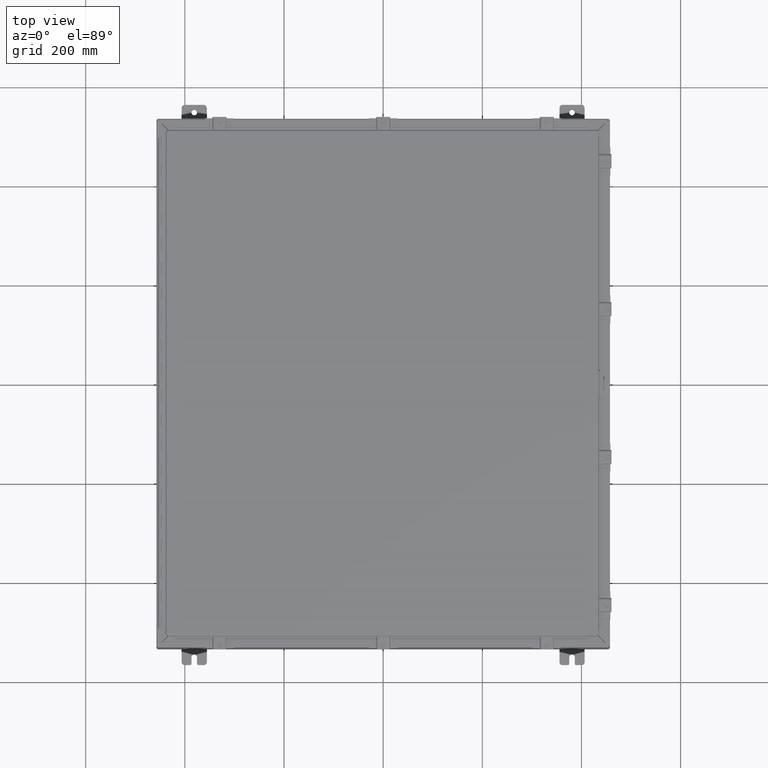
[diagram: clean part render]
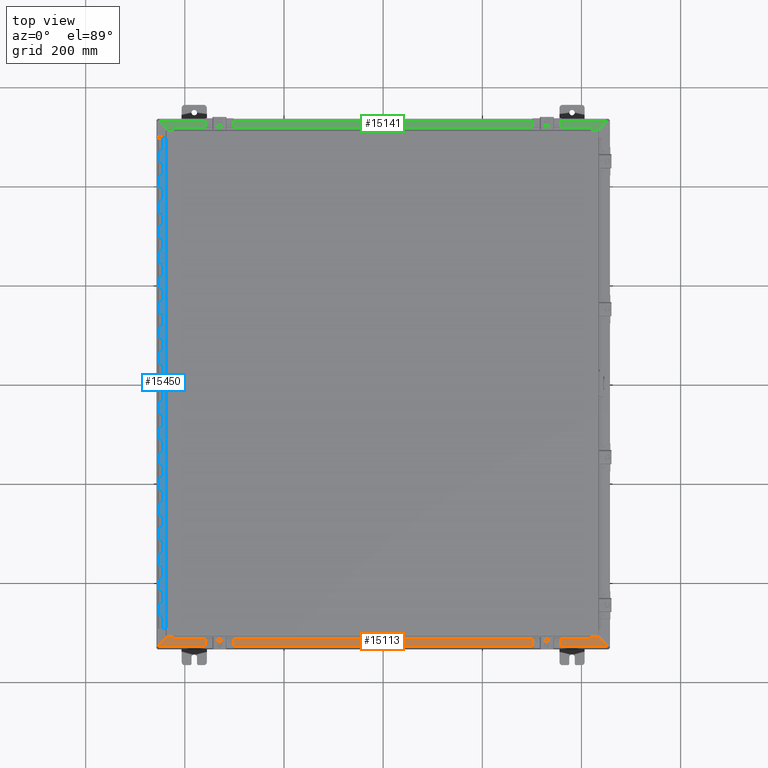
[diagram: same view with three faces highlighted in distinct colors, each labeled with its STEP entity id]
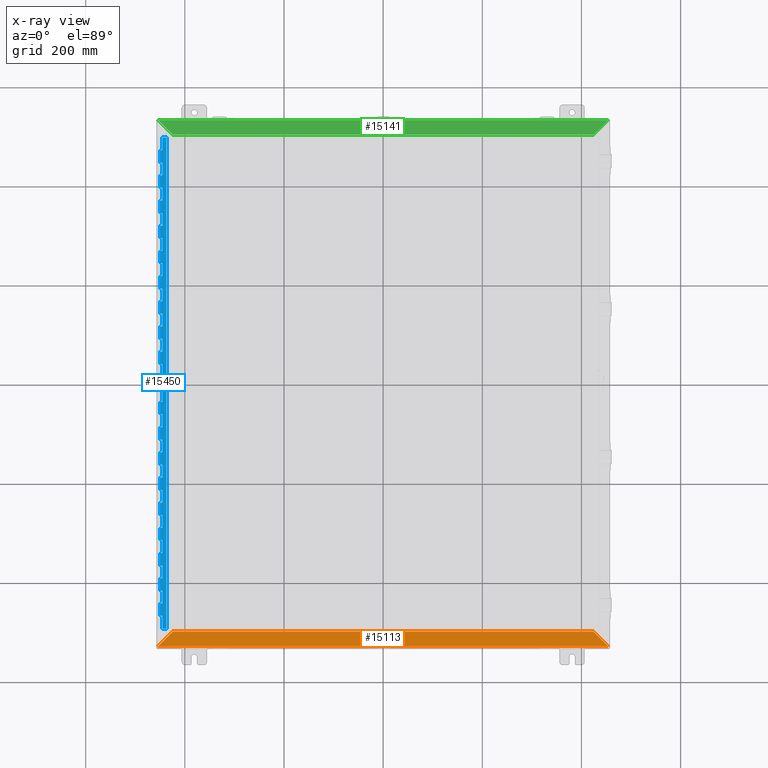
[diagram: x-ray of the same camera — body ghosted, the three highlighted faces saturated]
A machine part, top view with three faces highlighted in distinct colors.
The next image is the same camera in x-ray (body ghosted, the three faces saturated) — at least one of them is partly hidden behind the body in this view.
Their STEP definitions:

[orange] entity #15113 — the highlighted planar face has unit normal (-0, 0, -1).
#1395=PLANE('',#16019);
#1896=FACE_OUTER_BOUND('',#2747,.T.);
#2747=EDGE_LOOP('',(#10853,#10854,#10855,#10856));
#3695=LINE('',#22058,#5115);
#3697=LINE('',#22097,#5117);
#3698=LINE('',#22098,#5118);
#3699=LINE('',#22099,#5119);
#5115=VECTOR('',#17610,33.4081740981923);
#5117=VECTOR('',#17614,35.7371740981923);
#5118=VECTOR('',#17615,1.64685169338348);
#5119=VECTOR('',#17616,1.64685169338348);
#7079=VERTEX_POINT('',#22056);
#7080=VERTEX_POINT('',#22057);
#7087=VERTEX_POINT('',#22095);
#7088=VERTEX_POINT('',#22096);
#8553=EDGE_CURVE('',#7079,#7080,#3695,.T.);
#8561=EDGE_CURVE('',#7087,#7088,#3697,.T.);
#8562=EDGE_CURVE('',#7079,#7088,#3698,.T.);
#8563=EDGE_CURVE('',#7087,#7080,#3699,.T.);
#10853=ORIENTED_EDGE('',*,*,#8561,.T.);
#10854=ORIENTED_EDGE('',*,*,#8562,.F.);
#10855=ORIENTED_EDGE('',*,*,#8553,.T.);
#10856=ORIENTED_EDGE('',*,*,#8563,.F.);
#15113=ADVANCED_FACE('',(#1896),#1395,.F.);
#16019=AXIS2_PLACEMENT_3D('',#22094,#17612,#17613);
#17610=DIRECTION('',(-1.,-1.66420147168304E-16,1.62413541512435E-16));
#17612=DIRECTION('center_axis',(-1.62413541512437E-16,9.88144604941036E-15,
-1.));
#17613=DIRECTION('ref_axis',(-3.13227375855649E-16,1.,9.02389274415329E-15));
#17614=DIRECTION('',(1.,1.56520161755601E-16,-1.62413541512435E-16));
#17615=DIRECTION('',(0.707106781186547,-0.707106781186547,-7.52520684941644E-15));
#17616=DIRECTION('',(0.707106781186547,0.707106781186548,7.52677431392419E-15));
#22056=CARTESIAN_POINT('',(16.7040870490961,-19.73025,8.00000000000001));
#22057=CARTESIAN_POINT('',(-16.7040870490961,-19.73025,8.00000000000001));
#22058=CARTESIAN_POINT('',(-8.35204352454806,-19.73025,8.00000000000001));
#22094=CARTESIAN_POINT('Origin',(-1.41512624784124E-15,-20.3173631599451,
8.));
#22095=CARTESIAN_POINT('',(-17.8685870490961,-20.89475,8.));
#22096=CARTESIAN_POINT('',(17.8685870490961,-20.89475,7.99999999999999));
#22097=CARTESIAN_POINT('',(-2.05597108916229E-15,-20.89475,8.));
#22098=CARTESIAN_POINT('',(17.8685870490961,-20.89475,8.));
#22099=CARTESIAN_POINT('',(-17.8685870490961,-20.89475,8.));

[blue] entity #15450 — the highlighted planar face has unit normal (0.0872, 0, 0.9962).
#1591=PLANE('',#16433);
#2233=FACE_OUTER_BOUND('',#3094,.T.);
#3094=EDGE_LOOP('',(#12406,#12407,#12408,#12409,#12410,#12411,#12412,#12413,
#12414,#12415,#12416,#12417,#12418,#12419,#12420,#12421,#12422,#12423,#12424,
#12425,#12426,#12427,#12428,#12429,#12430,#12431,#12432,#12433,#12434,#12435,
#12436,#12437,#12438,#12439,#12440,#12441,#12442,#12443,#12444,#12445,#12446,
#12447,#12448,#12449,#12450,#12451,#12452,#12453,#12454,#12455,#12456,#12457,
#12458,#12459,#12460,#12461,#12462,#12463,#12464,#12465,#12466,#12467,#12468,
#12469,#12470,#12471,#12472,#12473,#12474,#12475,#12476,#12477,#12478,#12479,
#12480,#12481,#12482,#12483,#12484,#12485));
#4082=LINE('',#25482,#5502);
#4088=LINE('',#25495,#5508);
#4089=LINE('',#25501,#5509);
#4094=LINE('',#25513,#5514);
#4098=LINE('',#25524,#5518);
#4099=LINE('',#25530,#5519);
#4104=LINE('',#25542,#5524);
#4108=LINE('',#25553,#5528);
#4109=LINE('',#25559,#5529);
#4114=LINE('',#25571,#5534);
#4118=LINE('',#25582,#5538);
#4119=LINE('',#25588,#5539);
#4124=LINE('',#25600,#5544);
#4128=LINE('',#25611,#5548);
#4129=LINE('',#25617,#5549);
#4134=LINE('',#25629,#5554);
#4138=LINE('',#25640,#5558);
#4139=LINE('',#25646,#5559);
#4144=LINE('',#25658,#5564);
#4148=LINE('',#25669,#5568);
#4149=LINE('',#25675,#5569);
#4154=LINE('',#25687,#5574);
#4158=LINE('',#25698,#5578);
#4159=LINE('',#25704,#5579);
#4164=LINE('',#25716,#5584);
#4168=LINE('',#25727,#5588);
#4169=LINE('',#25733,#5589);
#4174=LINE('',#25745,#5594);
#4178=LINE('',#25756,#5598);
#4179=LINE('',#25762,#5599);
#4184=LINE('',#25774,#5604);
#4188=LINE('',#25785,#5608);
#4189=LINE('',#25791,#5609);
#4194=LINE('',#25803,#5614);
#4198=LINE('',#25814,#5618);
#4199=LINE('',#25820,#5619);
#4204=LINE('',#25832,#5624);
#4208=LINE('',#25843,#5628);
#4209=LINE('',#25849,#5629);
#4214=LINE('',#25861,#5634);
#4218=LINE('',#25872,#5638);
#4219=LINE('',#25878,#5639);
#4224=LINE('',#25890,#5644);
#4228=LINE('',#25901,#5648);
#4229=LINE('',#25907,#5649);
#4234=LINE('',#25919,#5654);
#4238=LINE('',#25930,#5658);
#4239=LINE('',#25936,#5659);
#4244=LINE('',#25948,#5664);
#4248=LINE('',#25959,#5668);
#4249=LINE('',#25965,#5669);
#4254=LINE('',#25977,#5674);
#4258=LINE('',#25988,#5678);
#4259=LINE('',#25994,#5679);
#4264=LINE('',#26006,#5684);
#4268=LINE('',#26017,#5688);
#4269=LINE('',#26019,#5689);
#4270=LINE('',#26020,#5690);
#4271=LINE('',#26021,#5691);
#4272=LINE('',#26022,#5692);
#4273=LINE('',#26023,#5693);
#4274=LINE('',#26024,#5694);
#4275=LINE('',#26025,#5695);
#4276=LINE('',#26026,#5696);
#4277=LINE('',#26027,#5697);
#4278=LINE('',#26028,#5698);
#4279=LINE('',#26029,#5699);
#4280=LINE('',#26030,#5700);
#4281=LINE('',#26031,#5701);
#4282=LINE('',#26032,#5702);
#4283=LINE('',#26033,#5703);
#4284=LINE('',#26034,#5704);
#4285=LINE('',#26035,#5705);
#4286=LINE('',#26036,#5706);
#4287=LINE('',#26038,#5707);
#4288=LINE('',#26040,#5708);
#4289=LINE('',#26042,#5709);
#4290=LINE('',#26044,#5710);
#4291=LINE('',#26046,#5711);
#4292=LINE('',#26047,#5712);
#5502=VECTOR('',#18569,0.18);
#5508=VECTOR('',#18579,1.00000000000001);
#5509=VECTOR('',#18584,0.18);
#5514=VECTOR('',#18593,1.02);
#5518=VECTOR('',#18603,0.18);
#5519=VECTOR('',#18608,0.18);
#5524=VECTOR('',#18617,1.02);
#5528=VECTOR('',#18627,0.18);
#5529=VECTOR('',#18632,0.18);
#5534=VECTOR('',#18641,1.02);
#5538=VECTOR('',#18651,0.18);
#5539=VECTOR('',#18656,0.18);
#5544=VECTOR('',#18665,1.02);
#5548=VECTOR('',#18675,0.18);
#5549=VECTOR('',#18680,0.18);
#5554=VECTOR('',#18689,1.02);
#5558=VECTOR('',#18699,0.18);
#5559=VECTOR('',#18704,0.18);
#5564=VECTOR('',#18713,1.02);
#5568=VECTOR('',#18723,0.18);
#5569=VECTOR('',#18728,0.18);
#5574=VECTOR('',#18737,1.02);
#5578=VECTOR('',#18747,0.18);
#5579=VECTOR('',#18752,0.18);
#5584=VECTOR('',#18761,1.02);
#5588=VECTOR('',#18771,0.18);
#5589=VECTOR('',#18776,0.18);
#5594=VECTOR('',#18785,1.02);
#5598=VECTOR('',#18795,0.18);
#5599=VECTOR('',#18800,0.18);
#5604=VECTOR('',#18809,1.02);
#5608=VECTOR('',#18819,0.18);
#5609=VECTOR('',#18824,0.18);
#5614=VECTOR('',#18833,1.02);
#5618=VECTOR('',#18843,0.18);
#5619=VECTOR('',#18848,0.18);
#5624=VECTOR('',#18857,1.02);
#5628=VECTOR('',#18867,0.18);
#5629=VECTOR('',#18872,0.18);
#5634=VECTOR('',#18881,1.02);
#5638=VECTOR('',#18891,0.18);
#5639=VECTOR('',#18896,0.18);
#5644=VECTOR('',#18905,1.02);
#5648=VECTOR('',#18915,0.18);
#5649=VECTOR('',#18920,0.18);
#5654=VECTOR('',#18929,1.02);
#5658=VECTOR('',#18939,0.18);
#5659=VECTOR('',#18944,0.18);
#5664=VECTOR('',#18953,1.02);
#5668=VECTOR('',#18963,0.18);
#5669=VECTOR('',#18968,0.18);
#5674=VECTOR('',#18977,1.02);
#5678=VECTOR('',#18987,0.18);
#5679=VECTOR('',#18992,0.18);
#5684=VECTOR('',#19001,1.02);
#5688=VECTOR('',#19011,0.18);
#5689=VECTOR('',#19014,0.979999999999999);
#5690=VECTOR('',#19015,0.979999999999999);
#5691=VECTOR('',#19016,0.979999999999999);
#5692=VECTOR('',#19017,0.979999999999999);
#5693=VECTOR('',#19018,0.979999999999999);
#5694=VECTOR('',#19019,0.979999999999999);
#5695=VECTOR('',#19020,0.979999999999999);
#5696=VECTOR('',#19021,0.980000000000001);
#5697=VECTOR('',#19022,0.979999999999999);
#5698=VECTOR('',#19023,0.979999999999999);
#5699=VECTOR('',#19024,0.979999999999999);
#5700=VECTOR('',#19025,0.980000000000001);
#5701=VECTOR('',#19026,0.979999999999993);
#5702=VECTOR('',#19027,0.980000000000004);
#5703=VECTOR('',#19028,0.979999999999999);
#5704=VECTOR('',#19029,0.979999999999999);
#5705=VECTOR('',#19030,0.979999999999993);
#5706=VECTOR('',#19031,0.979999999999999);
#5707=VECTOR('',#19032,0.979999999999999);
#5708=VECTOR('',#19033,0.18);
#5709=VECTOR('',#19034,1.02);
#5710=VECTOR('',#19035,0.331005076730884);
#5711=VECTOR('',#19036,39.);
#5712=VECTOR('',#19037,0.331005076730884);
#7391=VERTEX_POINT('',#25478);
#7393=VERTEX_POINT('',#25481);
#7398=VERTEX_POINT('',#25492);
#7399=VERTEX_POINT('',#25497);
#7401=VERTEX_POINT('',#25500);
#7406=VERTEX_POINT('',#25512);
#7408=VERTEX_POINT('',#25517);
#7411=VERTEX_POINT('',#25526);
#7413=VERTEX_POINT('',#25529);
#7418=VERTEX_POINT('',#25541);
#7420=VERTEX_POINT('',#25546);
#7423=VERTEX_POINT('',#25555);
#7425=VERTEX_POINT('',#25558);
#7430=VERTEX_POINT('',#25570);
#7432=VERTEX_POINT('',#25575);
#7435=VERTEX_POINT('',#25584);
#7437=VERTEX_POINT('',#25587);
#7442=VERTEX_POINT('',#25599);
#7444=VERTEX_POINT('',#25604);
#7447=VERTEX_POINT('',#25613);
#7449=VERTEX_POINT('',#25616);
#7454=VERTEX_POINT('',#25628);
#7456=VERTEX_POINT('',#25633);
#7459=VERTEX_POINT('',#25642);
#7461=VERTEX_POINT('',#25645);
#7466=VERTEX_POINT('',#25657);
#7468=VERTEX_POINT('',#25662);
#7471=VERTEX_POINT('',#25671);
#7473=VERTEX_POINT('',#25674);
#7478=VERTEX_POINT('',#25686);
#7480=VERTEX_POINT('',#25691);
#7483=VERTEX_POINT('',#25700);
#7485=VERTEX_POINT('',#25703);
#7490=VERTEX_POINT('',#25715);
#7492=VERTEX_POINT('',#25720);
#7495=VERTEX_POINT('',#25729);
#7497=VERTEX_POINT('',#25732);
#7502=VERTEX_POINT('',#25744);
#7504=VERTEX_POINT('',#25749);
#7507=VERTEX_POINT('',#25758);
#7509=VERTEX_POINT('',#25761);
#7514=VERTEX_POINT('',#25773);
#7516=VERTEX_POINT('',#25778);
#7519=VERTEX_POINT('',#25787);
#7521=VERTEX_POINT('',#25790);
#7526=VERTEX_POINT('',#25802);
#7528=VERTEX_POINT('',#25807);
#7531=VERTEX_POINT('',#25816);
#7533=VERTEX_POINT('',#25819);
#7538=VERTEX_POINT('',#25831);
#7540=VERTEX_POINT('',#25836);
#7543=VERTEX_POINT('',#25845);
#7545=VERTEX_POINT('',#25848);
#7550=VERTEX_POINT('',#25860);
#7552=VERTEX_POINT('',#25865);
#7555=VERTEX_POINT('',#25874);
#7557=VERTEX_POINT('',#25877);
#7562=VERTEX_POINT('',#25889);
#7564=VERTEX_POINT('',#25894);
#7567=VERTEX_POINT('',#25903);
#7569=VERTEX_POINT('',#25906);
#7574=VERTEX_POINT('',#25918);
#7576=VERTEX_POINT('',#25923);
#7579=VERTEX_POINT('',#25932);
#7581=VERTEX_POINT('',#25935);
#7586=VERTEX_POINT('',#25947);
#7588=VERTEX_POINT('',#25952);
#7591=VERTEX_POINT('',#25961);
#7593=VERTEX_POINT('',#25964);
#7598=VERTEX_POINT('',#25976);
#7600=VERTEX_POINT('',#25981);
#7603=VERTEX_POINT('',#25990);
#7605=VERTEX_POINT('',#25993);
#7610=VERTEX_POINT('',#26005);
#7612=VERTEX_POINT('',#26010);
#7615=VERTEX_POINT('',#26037);
#7616=VERTEX_POINT('',#26039);
#7617=VERTEX_POINT('',#26041);
#7618=VERTEX_POINT('',#26043);
#7619=VERTEX_POINT('',#26045);
#9137=EDGE_CURVE('',#7393,#7391,#4082,.T.);
#9144=EDGE_CURVE('',#7398,#7393,#4088,.T.);
#9146=EDGE_CURVE('',#7401,#7399,#4089,.T.);
#9152=EDGE_CURVE('',#7406,#7401,#4094,.T.);
#9158=EDGE_CURVE('',#7408,#7406,#4098,.T.);
#9160=EDGE_CURVE('',#7413,#7411,#4099,.T.);
#9166=EDGE_CURVE('',#7418,#7413,#4104,.T.);
#9172=EDGE_CURVE('',#7420,#7418,#4108,.T.);
#9174=EDGE_CURVE('',#7425,#7423,#4109,.T.);
#9180=EDGE_CURVE('',#7430,#7425,#4114,.T.);
#9186=EDGE_CURVE('',#7432,#7430,#4118,.T.);
#9188=EDGE_CURVE('',#7437,#7435,#4119,.T.);
#9194=EDGE_CURVE('',#7442,#7437,#4124,.T.);
#9200=EDGE_CURVE('',#7444,#7442,#4128,.T.);
#9202=EDGE_CURVE('',#7449,#7447,#4129,.T.);
#9208=EDGE_CURVE('',#7454,#7449,#4134,.T.);
#9214=EDGE_CURVE('',#7456,#7454,#4138,.T.);
#9216=EDGE_CURVE('',#7461,#7459,#4139,.T.);
#9222=EDGE_CURVE('',#7466,#7461,#4144,.T.);
#9228=EDGE_CURVE('',#7468,#7466,#4148,.T.);
#9230=EDGE_CURVE('',#7473,#7471,#4149,.T.);
#9236=EDGE_CURVE('',#7478,#7473,#4154,.T.);
#9242=EDGE_CURVE('',#7480,#7478,#4158,.T.);
#9244=EDGE_CURVE('',#7485,#7483,#4159,.T.);
#9250=EDGE_CURVE('',#7490,#7485,#4164,.T.);
#9256=EDGE_CURVE('',#7492,#7490,#4168,.T.);
#9258=EDGE_CURVE('',#7497,#7495,#4169,.T.);
#9264=EDGE_CURVE('',#7502,#7497,#4174,.T.);
#9270=EDGE_CURVE('',#7504,#7502,#4178,.T.);
#9272=EDGE_CURVE('',#7509,#7507,#4179,.T.);
#9278=EDGE_CURVE('',#7514,#7509,#4184,.T.);
#9284=EDGE_CURVE('',#7516,#7514,#4188,.T.);
#9286=EDGE_CURVE('',#7521,#7519,#4189,.T.);
#9292=EDGE_CURVE('',#7526,#7521,#4194,.T.);
#9298=EDGE_CURVE('',#7528,#7526,#4198,.T.);
#9300=EDGE_CURVE('',#7533,#7531,#4199,.T.);
#9306=EDGE_CURVE('',#7538,#7533,#4204,.T.);
#9312=EDGE_CURVE('',#7540,#7538,#4208,.T.);
#9314=EDGE_CURVE('',#7545,#7543,#4209,.T.);
#9320=EDGE_CURVE('',#7550,#7545,#4214,.T.);
#9326=EDGE_CURVE('',#7552,#7550,#4218,.T.);
#9328=EDGE_CURVE('',#7557,#7555,#4219,.T.);
#9334=EDGE_CURVE('',#7562,#7557,#4224,.T.);
#9340=EDGE_CURVE('',#7564,#7562,#4228,.T.);
#9342=EDGE_CURVE('',#7569,#7567,#4229,.T.);
#9348=EDGE_CURVE('',#7574,#7569,#4234,.T.);
#9354=EDGE_CURVE('',#7576,#7574,#4238,.T.);
#9356=EDGE_CURVE('',#7581,#7579,#4239,.T.);
#9362=EDGE_CURVE('',#7586,#7581,#4244,.T.);
#9368=EDGE_CURVE('',#7588,#7586,#4248,.T.);
#9370=EDGE_CURVE('',#7593,#7591,#4249,.T.);
#9376=EDGE_CURVE('',#7598,#7593,#4254,.T.);
#9382=EDGE_CURVE('',#7600,#7598,#4258,.T.);
#9384=EDGE_CURVE('',#7605,#7603,#4259,.T.);
#9390=EDGE_CURVE('',#7610,#7605,#4264,.T.);
#9396=EDGE_CURVE('',#7612,#7610,#4268,.T.);
#9397=EDGE_CURVE('',#7391,#7408,#4269,.T.);
#9398=EDGE_CURVE('',#7399,#7420,#4270,.T.);
#9399=EDGE_CURVE('',#7411,#7432,#4271,.T.);
#9400=EDGE_CURVE('',#7423,#7444,#4272,.T.);
#9401=EDGE_CURVE('',#7435,#7456,#4273,.T.);
#9402=EDGE_CURVE('',#7447,#7468,#4274,.T.);
#9403=EDGE_CURVE('',#7459,#7480,#4275,.T.);
#9404=EDGE_CURVE('',#7471,#7492,#4276,.T.);
#9405=EDGE_CURVE('',#7483,#7504,#4277,.T.);
#9406=EDGE_CURVE('',#7495,#7516,#4278,.T.);
#9407=EDGE_CURVE('',#7507,#7528,#4279,.T.);
#9408=EDGE_CURVE('',#7519,#7540,#4280,.T.);
#9409=EDGE_CURVE('',#7531,#7552,#4281,.T.);
#9410=EDGE_CURVE('',#7543,#7564,#4282,.T.);
#9411=EDGE_CURVE('',#7555,#7576,#4283,.T.);
#9412=EDGE_CURVE('',#7567,#7588,#4284,.T.);
#9413=EDGE_CURVE('',#7579,#7600,#4285,.T.);
#9414=EDGE_CURVE('',#7591,#7612,#4286,.T.);
#9415=EDGE_CURVE('',#7603,#7615,#4287,.T.);
#9416=EDGE_CURVE('',#7615,#7616,#4288,.T.);
#9417=EDGE_CURVE('',#7616,#7617,#4289,.T.);
#9418=EDGE_CURVE('',#7617,#7618,#4290,.T.);
#9419=EDGE_CURVE('',#7619,#7618,#4291,.T.);
#9420=EDGE_CURVE('',#7619,#7398,#4292,.T.);
#12406=ORIENTED_EDGE('',*,*,#9144,.T.);
#12407=ORIENTED_EDGE('',*,*,#9137,.T.);
#12408=ORIENTED_EDGE('',*,*,#9397,.T.);
#12409=ORIENTED_EDGE('',*,*,#9158,.T.);
#12410=ORIENTED_EDGE('',*,*,#9152,.T.);
#12411=ORIENTED_EDGE('',*,*,#9146,.T.);
#12412=ORIENTED_EDGE('',*,*,#9398,.T.);
#12413=ORIENTED_EDGE('',*,*,#9172,.T.);
#12414=ORIENTED_EDGE('',*,*,#9166,.T.);
#12415=ORIENTED_EDGE('',*,*,#9160,.T.);
#12416=ORIENTED_EDGE('',*,*,#9399,.T.);
#12417=ORIENTED_EDGE('',*,*,#9186,.T.);
#12418=ORIENTED_EDGE('',*,*,#9180,.T.);
#12419=ORIENTED_EDGE('',*,*,#9174,.T.);
#12420=ORIENTED_EDGE('',*,*,#9400,.T.);
#12421=ORIENTED_EDGE('',*,*,#9200,.T.);
#12422=ORIENTED_EDGE('',*,*,#9194,.T.);
#12423=ORIENTED_EDGE('',*,*,#9188,.T.);
#12424=ORIENTED_EDGE('',*,*,#9401,.T.);
#12425=ORIENTED_EDGE('',*,*,#9214,.T.);
#12426=ORIENTED_EDGE('',*,*,#9208,.T.);
#12427=ORIENTED_EDGE('',*,*,#9202,.T.);
#12428=ORIENTED_EDGE('',*,*,#9402,.T.);
#12429=ORIENTED_EDGE('',*,*,#9228,.T.);
#12430=ORIENTED_EDGE('',*,*,#9222,.T.);
#12431=ORIENTED_EDGE('',*,*,#9216,.T.);
#12432=ORIENTED_EDGE('',*,*,#9403,.T.);
#12433=ORIENTED_EDGE('',*,*,#9242,.T.);
#12434=ORIENTED_EDGE('',*,*,#9236,.T.);
#12435=ORIENTED_EDGE('',*,*,#9230,.T.);
#12436=ORIENTED_EDGE('',*,*,#9404,.T.);
#12437=ORIENTED_EDGE('',*,*,#9256,.T.);
#12438=ORIENTED_EDGE('',*,*,#9250,.T.);
#12439=ORIENTED_EDGE('',*,*,#9244,.T.);
#12440=ORIENTED_EDGE('',*,*,#9405,.T.);
#12441=ORIENTED_EDGE('',*,*,#9270,.T.);
#12442=ORIENTED_EDGE('',*,*,#9264,.T.);
#12443=ORIENTED_EDGE('',*,*,#9258,.T.);
#12444=ORIENTED_EDGE('',*,*,#9406,.T.);
#12445=ORIENTED_EDGE('',*,*,#9284,.T.);
#12446=ORIENTED_EDGE('',*,*,#9278,.T.);
#12447=ORIENTED_EDGE('',*,*,#9272,.T.);
#12448=ORIENTED_EDGE('',*,*,#9407,.T.);
#12449=ORIENTED_EDGE('',*,*,#9298,.T.);
#12450=ORIENTED_EDGE('',*,*,#9292,.T.);
#12451=ORIENTED_EDGE('',*,*,#9286,.T.);
#12452=ORIENTED_EDGE('',*,*,#9408,.T.);
#12453=ORIENTED_EDGE('',*,*,#9312,.T.);
#12454=ORIENTED_EDGE('',*,*,#9306,.T.);
#12455=ORIENTED_EDGE('',*,*,#9300,.T.);
#12456=ORIENTED_EDGE('',*,*,#9409,.T.);
#12457=ORIENTED_EDGE('',*,*,#9326,.T.);
#12458=ORIENTED_EDGE('',*,*,#9320,.T.);
#12459=ORIENTED_EDGE('',*,*,#9314,.T.);
#12460=ORIENTED_EDGE('',*,*,#9410,.T.);
#12461=ORIENTED_EDGE('',*,*,#9340,.T.);
#12462=ORIENTED_EDGE('',*,*,#9334,.T.);
#12463=ORIENTED_EDGE('',*,*,#9328,.T.);
#12464=ORIENTED_EDGE('',*,*,#9411,.T.);
#12465=ORIENTED_EDGE('',*,*,#9354,.T.);
#12466=ORIENTED_EDGE('',*,*,#9348,.T.);
#12467=ORIENTED_EDGE('',*,*,#9342,.T.);
#12468=ORIENTED_EDGE('',*,*,#9412,.T.);
#12469=ORIENTED_EDGE('',*,*,#9368,.T.);
#12470=ORIENTED_EDGE('',*,*,#9362,.T.);
#12471=ORIENTED_EDGE('',*,*,#9356,.T.);
#12472=ORIENTED_EDGE('',*,*,#9413,.T.);
#12473=ORIENTED_EDGE('',*,*,#9382,.T.);
#12474=ORIENTED_EDGE('',*,*,#9376,.T.);
#12475=ORIENTED_EDGE('',*,*,#9370,.T.);
#12476=ORIENTED_EDGE('',*,*,#9414,.T.);
#12477=ORIENTED_EDGE('',*,*,#9396,.T.);
#12478=ORIENTED_EDGE('',*,*,#9390,.T.);
#12479=ORIENTED_EDGE('',*,*,#9384,.T.);
#12480=ORIENTED_EDGE('',*,*,#9415,.T.);
#12481=ORIENTED_EDGE('',*,*,#9416,.T.);
#12482=ORIENTED_EDGE('',*,*,#9417,.T.);
#12483=ORIENTED_EDGE('',*,*,#9418,.T.);
#12484=ORIENTED_EDGE('',*,*,#9419,.F.);
#12485=ORIENTED_EDGE('',*,*,#9420,.T.);
#15450=ADVANCED_FACE('',(#2233),#1591,.T.);
#16433=AXIS2_PLACEMENT_3D('',#26018,#19012,#19013);
#18569=DIRECTION('',(1.,1.60772500402571E-16,-4.50612437282574E-30));
#18579=DIRECTION('',(0.,0.,1.));
#18584=DIRECTION('',(1.,1.60772500402571E-16,-4.50612437282574E-30));
#18593=DIRECTION('',(0.,0.,1.));
#18603=DIRECTION('',(-1.,-1.60772500402571E-16,4.50612437282575E-30));
#18608=DIRECTION('',(1.,1.60772500402571E-16,-4.50612437282574E-30));
#18617=DIRECTION('',(0.,0.,1.));
#18627=DIRECTION('',(-1.,-1.60772500402571E-16,4.50612437282575E-30));
#18632=DIRECTION('',(1.,1.60772500402571E-16,-4.50612437282574E-30));
#18641=DIRECTION('',(0.,0.,1.));
#18651=DIRECTION('',(-1.,-1.60772500402571E-16,4.50612437282575E-30));
#18656=DIRECTION('',(1.,1.60772500402571E-16,-4.50612437282574E-30));
#18665=DIRECTION('',(0.,0.,1.));
#18675=DIRECTION('',(-1.,-1.60772500402571E-16,4.50612437282575E-30));
#18680=DIRECTION('',(1.,1.60772500402571E-16,-4.50612437282574E-30));
#18689=DIRECTION('',(0.,0.,1.));
#18699=DIRECTION('',(-1.,-1.60772500402571E-16,4.50612437282575E-30));
#18704=DIRECTION('',(1.,1.60772500402571E-16,-4.50612437282574E-30));
#18713=DIRECTION('',(0.,0.,1.));
#18723=DIRECTION('',(-1.,-1.60772500402571E-16,4.50612437282575E-30));
#18728=DIRECTION('',(1.,1.60772500402571E-16,-4.50612437282574E-30));
#18737=DIRECTION('',(0.,0.,1.));
#18747=DIRECTION('',(-1.,-1.60772500402571E-16,4.50612437282575E-30));
#18752=DIRECTION('',(1.,1.60772500402571E-16,-4.50612437282574E-30));
#18761=DIRECTION('',(0.,0.,1.));
#18771=DIRECTION('',(-1.,-1.60772500402571E-16,4.50612437282575E-30));
#18776=DIRECTION('',(1.,1.60772500402571E-16,-4.50612437282574E-30));
#18785=DIRECTION('',(0.,0.,1.));
#18795=DIRECTION('',(-1.,-1.60772500402571E-16,4.50612437282575E-30));
#18800=DIRECTION('',(1.,1.60772500402571E-16,-4.50612437282574E-30));
#18809=DIRECTION('',(0.,0.,1.));
#18819=DIRECTION('',(-1.,-1.60772500402571E-16,4.50612437282575E-30));
#18824=DIRECTION('',(1.,1.60772500402571E-16,-4.50612437282574E-30));
#18833=DIRECTION('',(0.,0.,1.));
#18843=DIRECTION('',(-1.,-1.60772500402571E-16,4.50612437282575E-30));
#18848=DIRECTION('',(1.,1.60772500402571E-16,-4.50612437282574E-30));
#18857=DIRECTION('',(0.,0.,1.));
#18867=DIRECTION('',(-1.,-1.60772500402571E-16,4.50612437282575E-30));
#18872=DIRECTION('',(1.,1.60772500402571E-16,-4.50612437282574E-30));
#18881=DIRECTION('',(0.,0.,1.));
#18891=DIRECTION('',(-1.,-1.60772500402571E-16,4.50612437282575E-30));
#18896=DIRECTION('',(1.,1.60772500402571E-16,-4.50612437282574E-30));
#18905=DIRECTION('',(0.,0.,1.));
#18915=DIRECTION('',(-1.,-1.60772500402571E-16,4.50612437282575E-30));
#18920=DIRECTION('',(1.,1.60772500402571E-16,-4.50612437282574E-30));
#18929=DIRECTION('',(0.,0.,1.));
#18939=DIRECTION('',(-1.,-1.60772500402571E-16,4.50612437282575E-30));
#18944=DIRECTION('',(1.,1.60772500402571E-16,-4.50612437282574E-30));
#18953=DIRECTION('',(0.,0.,1.));
#18963=DIRECTION('',(-1.,-1.60772500402571E-16,4.50612437282575E-30));
#18968=DIRECTION('',(1.,1.60772500402571E-16,-4.50612437282574E-30));
#18977=DIRECTION('',(0.,0.,1.));
#18987=DIRECTION('',(-1.,-1.60772500402571E-16,4.50612437282575E-30));
#18992=DIRECTION('',(1.,1.60772500402571E-16,-4.50612437282574E-30));
#19001=DIRECTION('',(0.,0.,1.));
#19011=DIRECTION('',(-1.,-1.60772500402571E-16,4.50612437282575E-30));
#19012=DIRECTION('center_axis',(1.60772500402571E-16,-1.,0.));
#19013=DIRECTION('ref_axis',(0.,0.,-1.));
#19014=DIRECTION('',(0.,0.,1.));
#19015=DIRECTION('',(0.,0.,1.));
#19016=DIRECTION('',(0.,0.,1.));
#19017=DIRECTION('',(0.,0.,1.));
#19018=DIRECTION('',(0.,0.,1.));
#19019=DIRECTION('',(0.,0.,1.));
#19020=DIRECTION('',(0.,0.,1.));
#19021=DIRECTION('',(0.,0.,1.));
#19022=DIRECTION('',(0.,0.,1.));
#19023=DIRECTION('',(0.,0.,1.));
#19024=DIRECTION('',(0.,0.,1.));
#19025=DIRECTION('',(0.,0.,1.));
#19026=DIRECTION('',(0.,0.,1.));
#19027=DIRECTION('',(0.,0.,1.));
#19028=DIRECTION('',(0.,0.,1.));
#19029=DIRECTION('',(0.,0.,1.));
#19030=DIRECTION('',(0.,0.,1.));
#19031=DIRECTION('',(0.,0.,1.));
#19032=DIRECTION('',(0.,0.,1.));
#19033=DIRECTION('',(-1.,-1.60772500402571E-16,4.50612437282575E-30));
#19034=DIRECTION('',(0.,0.,1.));
#19035=DIRECTION('',(-1.,-1.60772500402571E-16,0.));
#19036=DIRECTION('',(0.,0.,1.));
#19037=DIRECTION('',(1.,1.60772500402571E-16,0.));
#25478=CARTESIAN_POINT('',(0.,-0.125,1.00000000000001));
#25481=CARTESIAN_POINT('',(-0.18,-0.125,1.00000000000001));
#25482=CARTESIAN_POINT('',(2.97816405903437E-17,-0.125,1.00000000000001));
#25492=CARTESIAN_POINT('',(-0.18,-0.125,0.));
#25495=CARTESIAN_POINT('',(-0.18,-0.125,0.500000000000004));
#25497=CARTESIAN_POINT('',(0.,-0.125,3.00000000000001));
#25500=CARTESIAN_POINT('',(-0.18,-0.125,3.00000000000001));
#25501=CARTESIAN_POINT('',(2.93785841135356E-17,-0.125,3.00000000000001));
#25512=CARTESIAN_POINT('',(-0.18,-0.125,1.98000000000001));
#25513=CARTESIAN_POINT('',(-0.18,-0.125,1.5));
#25517=CARTESIAN_POINT('',(0.,-0.125,1.98000000000001));
#25524=CARTESIAN_POINT('',(2.93785841135333E-17,-0.125,1.98000000000001));
#25526=CARTESIAN_POINT('',(0.,-0.125,5.00000000000001));
#25529=CARTESIAN_POINT('',(-0.18,-0.125,5.00000000000001));
#25530=CARTESIAN_POINT('',(2.89755276367275E-17,-0.125,5.00000000000001));
#25541=CARTESIAN_POINT('',(-0.18,-0.125,3.98000000000001));
#25542=CARTESIAN_POINT('',(-0.18,-0.125,2.5));
#25546=CARTESIAN_POINT('',(0.,-0.125,3.98000000000001));
#25553=CARTESIAN_POINT('',(2.89755276367252E-17,-0.125,3.98000000000001));
#25555=CARTESIAN_POINT('',(0.,-0.125,7.00000000000001));
#25558=CARTESIAN_POINT('',(-0.18,-0.125,7.00000000000001));
#25559=CARTESIAN_POINT('',(2.85724711599194E-17,-0.125,7.00000000000001));
#25570=CARTESIAN_POINT('',(-0.18,-0.125,5.98));
#25571=CARTESIAN_POINT('',(-0.18,-0.125,3.5));
#25575=CARTESIAN_POINT('',(0.,-0.125,5.98));
#25582=CARTESIAN_POINT('',(2.85724711599171E-17,-0.125,5.98));
#25584=CARTESIAN_POINT('',(0.,-0.125,9.00000000000001));
#25587=CARTESIAN_POINT('',(-0.18,-0.125,9.00000000000001));
#25588=CARTESIAN_POINT('',(2.81694146831113E-17,-0.125,9.00000000000001));
#25599=CARTESIAN_POINT('',(-0.18,-0.125,7.98));
#25600=CARTESIAN_POINT('',(-0.18,-0.125,4.5));
#25604=CARTESIAN_POINT('',(0.,-0.125,7.98));
#25611=CARTESIAN_POINT('',(2.81694146831091E-17,-0.125,7.98));
#25613=CARTESIAN_POINT('',(0.,-0.125,11.));
#25616=CARTESIAN_POINT('',(-0.18,-0.125,11.));
#25617=CARTESIAN_POINT('',(2.77663582063033E-17,-0.125,11.));
#25628=CARTESIAN_POINT('',(-0.18,-0.125,9.98));
#25629=CARTESIAN_POINT('',(-0.18,-0.125,5.5));
#25633=CARTESIAN_POINT('',(0.,-0.125,9.98));
#25640=CARTESIAN_POINT('',(2.7766358206301E-17,-0.125,9.98));
#25642=CARTESIAN_POINT('',(0.,-0.125,13.));
#25645=CARTESIAN_POINT('',(-0.18,-0.125,13.));
#25646=CARTESIAN_POINT('',(2.73633017294952E-17,-0.125,13.));
#25657=CARTESIAN_POINT('',(-0.18,-0.125,11.98));
#25658=CARTESIAN_POINT('',(-0.18,-0.125,6.5));
#25662=CARTESIAN_POINT('',(0.,-0.125,11.98));
#25669=CARTESIAN_POINT('',(2.73633017294929E-17,-0.125,11.98));
#25671=CARTESIAN_POINT('',(0.,-0.125,15.));
#25674=CARTESIAN_POINT('',(-0.18,-0.125,15.));
#25675=CARTESIAN_POINT('',(2.69602452526871E-17,-0.125,15.));
#25686=CARTESIAN_POINT('',(-0.18,-0.125,13.98));
#25687=CARTESIAN_POINT('',(-0.18,-0.125,7.5));
#25691=CARTESIAN_POINT('',(0.,-0.125,13.98));
#25698=CARTESIAN_POINT('',(2.69602452526848E-17,-0.125,13.98));
#25700=CARTESIAN_POINT('',(0.,-0.125,17.));
#25703=CARTESIAN_POINT('',(-0.18,-0.125,17.));
#25704=CARTESIAN_POINT('',(2.6557188775879E-17,-0.125,17.));
#25715=CARTESIAN_POINT('',(-0.18,-0.125,15.98));
#25716=CARTESIAN_POINT('',(-0.18,-0.125,8.5));
#25720=CARTESIAN_POINT('',(0.,-0.125,15.98));
#25727=CARTESIAN_POINT('',(2.65571887758767E-17,-0.125,15.98));
#25729=CARTESIAN_POINT('',(0.,-0.125,19.));
#25732=CARTESIAN_POINT('',(-0.18,-0.125,19.));
#25733=CARTESIAN_POINT('',(2.6154132299071E-17,-0.125,19.));
#25744=CARTESIAN_POINT('',(-0.18,-0.125,17.98));
#25745=CARTESIAN_POINT('',(-0.18,-0.125,9.5));
#25749=CARTESIAN_POINT('',(0.,-0.125,17.98));
#25756=CARTESIAN_POINT('',(2.61541322990687E-17,-0.125,17.98));
#25758=CARTESIAN_POINT('',(0.,-0.125,21.));
#25761=CARTESIAN_POINT('',(-0.18,-0.125,21.));
#25762=CARTESIAN_POINT('',(2.57510758222629E-17,-0.125,21.));
#25773=CARTESIAN_POINT('',(-0.18,-0.125,19.98));
#25774=CARTESIAN_POINT('',(-0.18,-0.125,10.5));
#25778=CARTESIAN_POINT('',(0.,-0.125,19.98));
#25785=CARTESIAN_POINT('',(2.57510758222606E-17,-0.125,19.98));
#25787=CARTESIAN_POINT('',(0.,-0.125,23.));
#25790=CARTESIAN_POINT('',(-0.18,-0.125,23.));
#25791=CARTESIAN_POINT('',(2.53480193454548E-17,-0.125,23.));
#25802=CARTESIAN_POINT('',(-0.18,-0.125,21.98));
#25803=CARTESIAN_POINT('',(-0.18,-0.125,11.5));
#25807=CARTESIAN_POINT('',(0.,-0.125,21.98));
#25814=CARTESIAN_POINT('',(2.53480193454525E-17,-0.125,21.98));
#25816=CARTESIAN_POINT('',(0.,-0.125,25.));
#25819=CARTESIAN_POINT('',(-0.18,-0.125,25.));
#25820=CARTESIAN_POINT('',(2.49449628686467E-17,-0.125,25.));
#25831=CARTESIAN_POINT('',(-0.18,-0.125,23.98));
#25832=CARTESIAN_POINT('',(-0.18,-0.125,12.5));
#25836=CARTESIAN_POINT('',(0.,-0.125,23.98));
#25843=CARTESIAN_POINT('',(2.49449628686444E-17,-0.125,23.98));
#25845=CARTESIAN_POINT('',(0.,-0.125,27.));
#25848=CARTESIAN_POINT('',(-0.18,-0.125,27.));
#25849=CARTESIAN_POINT('',(2.45419063918387E-17,-0.125,27.));
#25860=CARTESIAN_POINT('',(-0.18,-0.125,25.98));
#25861=CARTESIAN_POINT('',(-0.18,-0.125,13.5));
#25865=CARTESIAN_POINT('',(0.,-0.125,25.98));
#25872=CARTESIAN_POINT('',(2.45419063918364E-17,-0.125,25.98));
#25874=CARTESIAN_POINT('',(0.,-0.125,29.));
#25877=CARTESIAN_POINT('',(-0.18,-0.125,29.));
#25878=CARTESIAN_POINT('',(2.41388499150306E-17,-0.125,29.));
#25889=CARTESIAN_POINT('',(-0.18,-0.125,27.98));
#25890=CARTESIAN_POINT('',(-0.18,-0.125,14.5));
#25894=CARTESIAN_POINT('',(0.,-0.125,27.98));
#25901=CARTESIAN_POINT('',(2.41388499150283E-17,-0.125,27.98));
#25903=CARTESIAN_POINT('',(0.,-0.125,31.));
#25906=CARTESIAN_POINT('',(-0.18,-0.125,31.));
#25907=CARTESIAN_POINT('',(2.37357934382225E-17,-0.125,31.));
#25918=CARTESIAN_POINT('',(-0.18,-0.125,29.98));
#25919=CARTESIAN_POINT('',(-0.18,-0.125,15.5));
#25923=CARTESIAN_POINT('',(0.,-0.125,29.98));
#25930=CARTESIAN_POINT('',(2.37357934382202E-17,-0.125,29.98));
#25932=CARTESIAN_POINT('',(0.,-0.125,33.));
#25935=CARTESIAN_POINT('',(-0.18,-0.125,33.));
#25936=CARTESIAN_POINT('',(2.33327369614144E-17,-0.125,33.));
#25947=CARTESIAN_POINT('',(-0.18,-0.125,31.98));
#25948=CARTESIAN_POINT('',(-0.18,-0.125,16.5));
#25952=CARTESIAN_POINT('',(0.,-0.125,31.98));
#25959=CARTESIAN_POINT('',(2.33327369614121E-17,-0.125,31.98));
#25961=CARTESIAN_POINT('',(0.,-0.125,35.));
#25964=CARTESIAN_POINT('',(-0.18,-0.125,35.));
#25965=CARTESIAN_POINT('',(2.29296804846063E-17,-0.125,35.));
#25976=CARTESIAN_POINT('',(-0.18,-0.125,33.98));
#25977=CARTESIAN_POINT('',(-0.18,-0.125,17.5));
#25981=CARTESIAN_POINT('',(0.,-0.125,33.98));
#25988=CARTESIAN_POINT('',(2.29296804846041E-17,-0.125,33.98));
#25990=CARTESIAN_POINT('',(0.,-0.125,37.));
#25993=CARTESIAN_POINT('',(-0.18,-0.125,37.));
#25994=CARTESIAN_POINT('',(2.25266240077983E-17,-0.125,37.));
#26005=CARTESIAN_POINT('',(-0.18,-0.125,35.98));
#26006=CARTESIAN_POINT('',(-0.18,-0.125,18.5));
#26010=CARTESIAN_POINT('',(0.,-0.125,35.98));
#26017=CARTESIAN_POINT('',(2.2526624007796E-17,-0.125,35.98));
#26018=CARTESIAN_POINT('Origin',(1.53080849893419E-17,-0.125,0.));
#26019=CARTESIAN_POINT('',(1.53080849893419E-17,-0.125,0.));
#26020=CARTESIAN_POINT('',(1.53080849893419E-17,-0.125,0.));
#26021=CARTESIAN_POINT('',(1.53080849893419E-17,-0.125,0.));
#26022=CARTESIAN_POINT('',(1.53080849893419E-17,-0.125,0.));
#26023=CARTESIAN_POINT('',(1.53080849893419E-17,-0.125,0.));
#26024=CARTESIAN_POINT('',(1.53080849893419E-17,-0.125,0.));
#26025=CARTESIAN_POINT('',(1.53080849893419E-17,-0.125,0.));
#26026=CARTESIAN_POINT('',(1.53080849893419E-17,-0.125,0.));
#26027=CARTESIAN_POINT('',(1.53080849893419E-17,-0.125,0.));
#26028=CARTESIAN_POINT('',(1.53080849893419E-17,-0.125,0.));
#26029=CARTESIAN_POINT('',(1.53080849893419E-17,-0.125,0.));
#26030=CARTESIAN_POINT('',(1.53080849893419E-17,-0.125,0.));
#26031=CARTESIAN_POINT('',(1.53080849893419E-17,-0.125,0.));
#26032=CARTESIAN_POINT('',(1.53080849893419E-17,-0.125,0.));
#26033=CARTESIAN_POINT('',(1.53080849893419E-17,-0.125,0.));
#26034=CARTESIAN_POINT('',(1.53080849893419E-17,-0.125,0.));
#26035=CARTESIAN_POINT('',(1.53080849893419E-17,-0.125,0.));
#26036=CARTESIAN_POINT('',(1.53080849893419E-17,-0.125,0.));
#26037=CARTESIAN_POINT('',(0.,-0.125,37.98));
#26038=CARTESIAN_POINT('',(1.53080849893419E-17,-0.125,0.));
#26039=CARTESIAN_POINT('',(-0.18,-0.125,37.98));
#26040=CARTESIAN_POINT('',(2.21235675309879E-17,-0.125,37.98));
#26041=CARTESIAN_POINT('',(-0.18,-0.125,39.));
#26042=CARTESIAN_POINT('',(-0.18,-0.125,19.5));
#26043=CARTESIAN_POINT('',(-0.511005076730884,-0.125,39.));
#26044=CARTESIAN_POINT('',(-0.543744331762962,-0.125,39.));
#26045=CARTESIAN_POINT('',(-0.511005076730884,-0.125,0.));
#26046=CARTESIAN_POINT('',(-0.511005076730884,-0.125,0.));
#26047=CARTESIAN_POINT('',(-0.543744331762962,-0.125,0.));

[green] entity #15141 — the highlighted planar face has unit normal (-0, 0, 1).
#1403=PLANE('',#16050);
#1924=FACE_OUTER_BOUND('',#2775,.T.);
#2775=EDGE_LOOP('',(#10983,#10984,#10985,#10986));
#3714=LINE('',#22239,#5134);
#3736=LINE('',#22713,#5156);
#3737=LINE('',#22715,#5157);
#3738=LINE('',#22716,#5158);
#5134=VECTOR('',#17665,33.4081740981923);
#5156=VECTOR('',#17715,1.64685169338348);
#5157=VECTOR('',#17716,35.7371740981923);
#5158=VECTOR('',#17717,1.64685169338348);
#7115=VERTEX_POINT('',#22233);
#7116=VERTEX_POINT('',#22238);
#7143=VERTEX_POINT('',#22712);
#7144=VERTEX_POINT('',#22714);
#8599=EDGE_CURVE('',#7116,#7115,#3714,.T.);
#8652=EDGE_CURVE('',#7143,#7115,#3736,.T.);
#8653=EDGE_CURVE('',#7143,#7144,#3737,.T.);
#8654=EDGE_CURVE('',#7116,#7144,#3738,.T.);
#10983=ORIENTED_EDGE('',*,*,#8599,.T.);
#10984=ORIENTED_EDGE('',*,*,#8652,.F.);
#10985=ORIENTED_EDGE('',*,*,#8653,.T.);
#10986=ORIENTED_EDGE('',*,*,#8654,.F.);
#15141=ADVANCED_FACE('',(#1924),#1403,.T.);
#16050=AXIS2_PLACEMENT_3D('',#22711,#17713,#17714);
#17665=DIRECTION('',(1.,-4.40951308520355E-31,1.54755654129638E-16));
#17713=DIRECTION('center_axis',(-1.54755654129638E-16,3.83031554798143E-14,
1.));
#17714=DIRECTION('ref_axis',(1.57363356943305E-16,-1.,3.60955709766132E-14));
#17715=DIRECTION('',(-0.707106781186547,-0.707106781186547,2.76238711291997E-14));
#17716=DIRECTION('',(-1.,-1.30385140683661E-18,-1.54755654129638E-16));
#17717=DIRECTION('',(-0.707106781186547,0.707106781186547,-2.76220272048568E-14));
#22233=CARTESIAN_POINT('',(16.7040870490961,19.73025,8.00000000000005));
#22238=CARTESIAN_POINT('',(-16.7040870490961,19.73025,8.00000000000004));
#22239=CARTESIAN_POINT('',(8.35204352454806,19.73025,8.00000000000005));
#22711=CARTESIAN_POINT('Origin',(-2.18794445040712E-15,20.3173631599451,
8.00000000000002));
#22712=CARTESIAN_POINT('',(17.8685870490961,20.89475,8.));
#22713=CARTESIAN_POINT('',(17.8685870490961,20.89475,8.));
#22714=CARTESIAN_POINT('',(-17.8685870490961,20.89475,8.));
#22715=CARTESIAN_POINT('',(-1.10249265482397E-15,20.89475,8.));
#22716=CARTESIAN_POINT('',(-17.8685870490961,20.89475,8.));